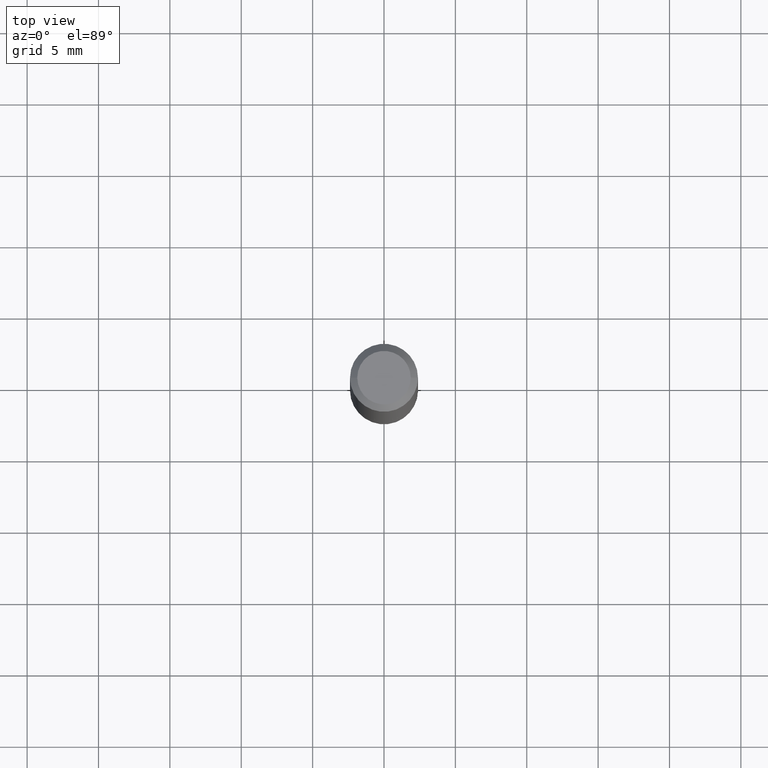
[diagram: clean part render]
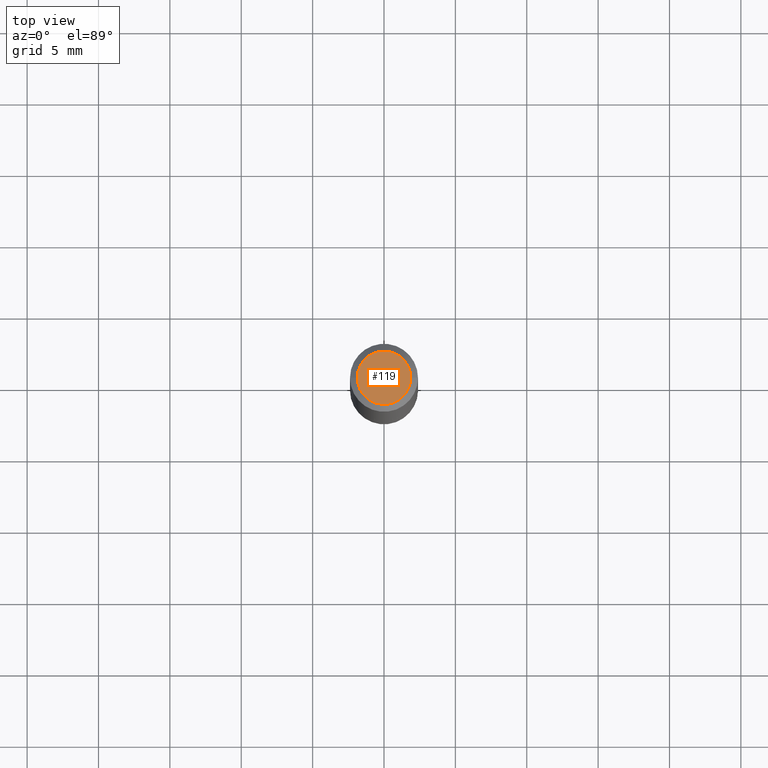
[diagram: same view with one face highlighted and labeled with its STEP entity id]
A machine part, top view. The second image highlights one B-rep face of the part: STEP entity #119.
In plain terms, the highlighted planar face has unit normal (0, -0, -1).
Its self-contained STEP definition (entity closure, byte-faithful):
#5 = PLANE ( 'NONE',  #113 ) ;
#25 = CARTESIAN_POINT ( 'NONE',  ( -0.07374999999999988509, 5.499083108677923596E-16, 4.268512490096688071E-18 ) ) ;
#59 = DIRECTION ( 'NONE',  ( -1.000000000000000000, 6.982962677686265922E-15, -4.876176775795935793E-29 ) ) ;
#61 = DIRECTION ( 'NONE',  ( 1.000000000000000000, -6.982962677686265922E-15, 4.875869617646592813E-29 ) ) ;
#63 = CARTESIAN_POINT ( 'NONE',  ( -1.043851414335219820E-46, 1.490343170380447200E-32, 4.268512490100411279E-18 ) ) ;
#66 = CARTESIAN_POINT ( 'NONE',  ( 0.07374999999999988509, -6.094815207017963170E-16, 4.268512490104342487E-18 ) ) ;
#81 = DIRECTION ( 'NONE',  ( 2.438088387897960049E-29, -3.491481338843145188E-15, -1.000000000000000000 ) ) ;
#83 = EDGE_CURVE ( 'NONE', #108, #262, #103, .T. ) ;
#92 = ORIENTED_EDGE ( 'NONE', *, *, #83, .T. ) ;
#103 = CIRCLE ( 'NONE', #241, 0.07374999999999988509 ) ;
#108 = VERTEX_POINT ( 'NONE', #25 ) ;
#113 = AXIS2_PLACEMENT_3D ( 'NONE', #311, #81, #59 ) ;
#119 = ADVANCED_FACE ( 'NONE', ( #147 ), #5, .F. ) ;
#120 = DIRECTION ( 'NONE',  ( -2.445468806185136597E-29, 3.491481338843145583E-15, 1.000000000000000000 ) ) ;
#147 = FACE_OUTER_BOUND ( 'NONE', #331, .T. ) ;
#152 = EDGE_CURVE ( 'NONE', #262, #108, #310, .T. ) ;
#174 = AXIS2_PLACEMENT_3D ( 'NONE', #195, #120, #308 ) ;
#195 = CARTESIAN_POINT ( 'NONE',  ( -1.043851414335219820E-46, 1.490343170380447200E-32, 4.268512490100411279E-18 ) ) ;
#200 = DIRECTION ( 'NONE',  ( -2.445468806185136597E-29, 3.491481338843145583E-15, 1.000000000000000000 ) ) ;
#241 = AXIS2_PLACEMENT_3D ( 'NONE', #63, #200, #61 ) ;
#262 = VERTEX_POINT ( 'NONE', #66 ) ;
#308 = DIRECTION ( 'NONE',  ( 1.000000000000000000, -6.982962677686265922E-15, 4.875869617646592813E-29 ) ) ;
#310 = CIRCLE ( 'NONE', #174, 0.07374999999999988509 ) ;
#311 = CARTESIAN_POINT ( 'NONE',  ( 5.149934974793613022E-16, 0.07374999999999988509, -2.553624924946313252E-16 ) ) ;
#317 = ORIENTED_EDGE ( 'NONE', *, *, #152, .T. ) ;
#331 = EDGE_LOOP ( 'NONE', ( #92, #317 ) ) ;